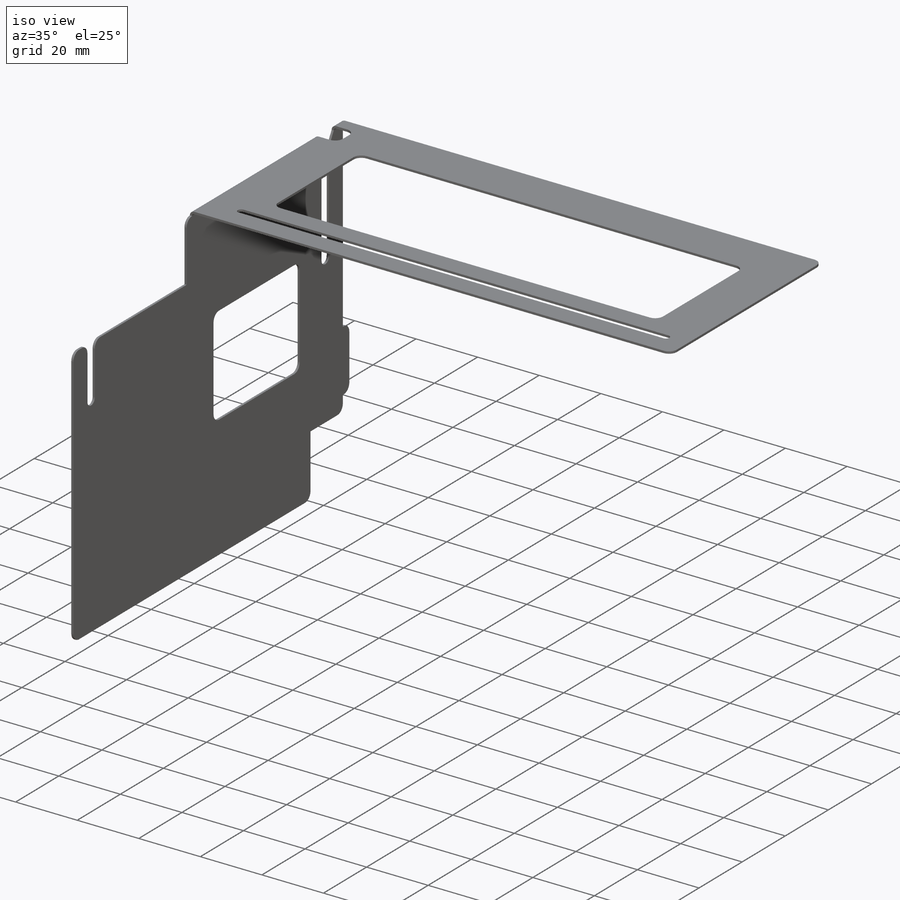
[diagram: iso view]
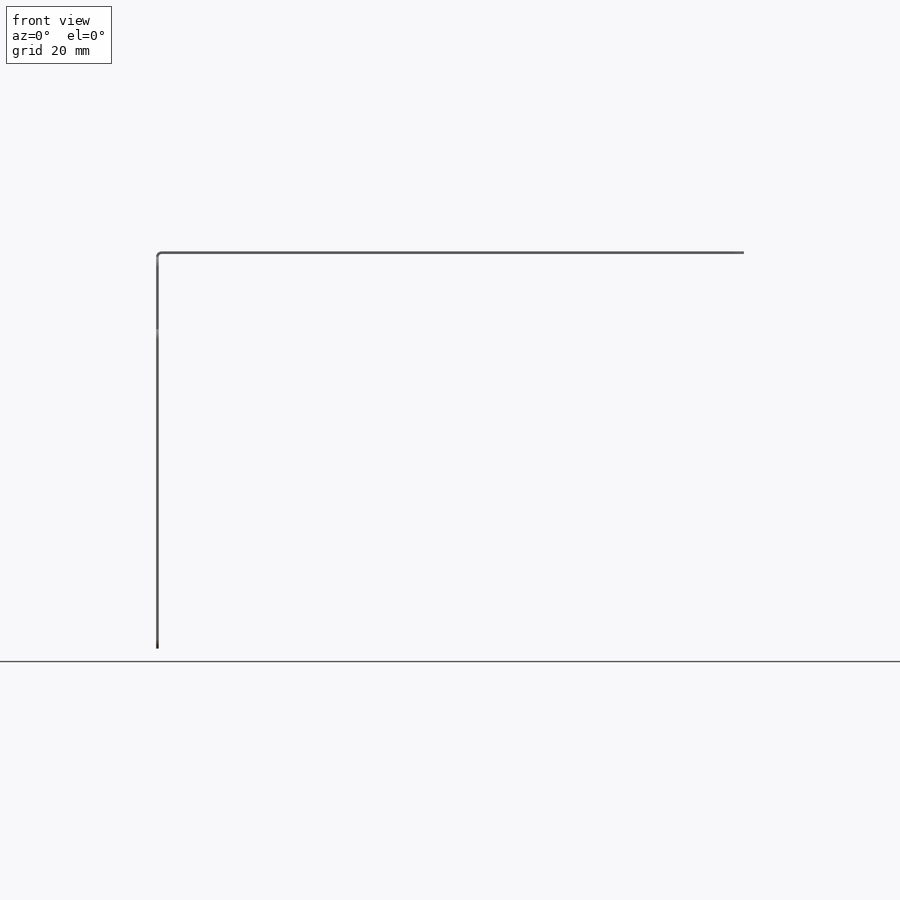
[diagram: front view]
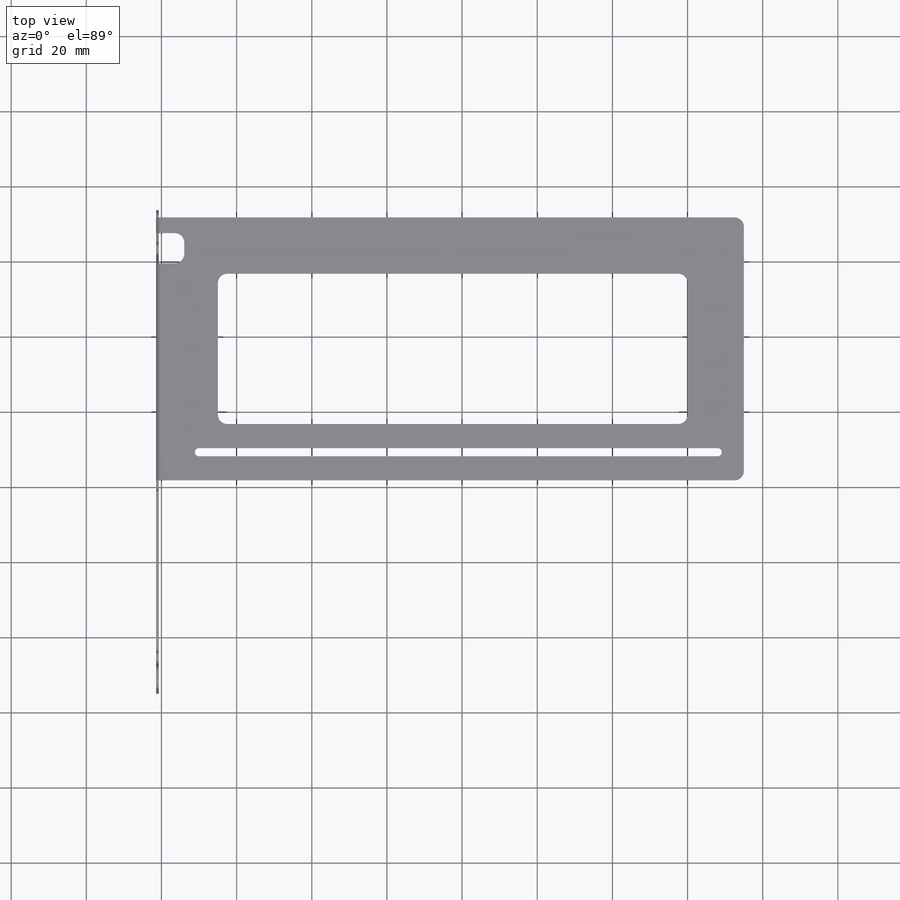
[diagram: top view]
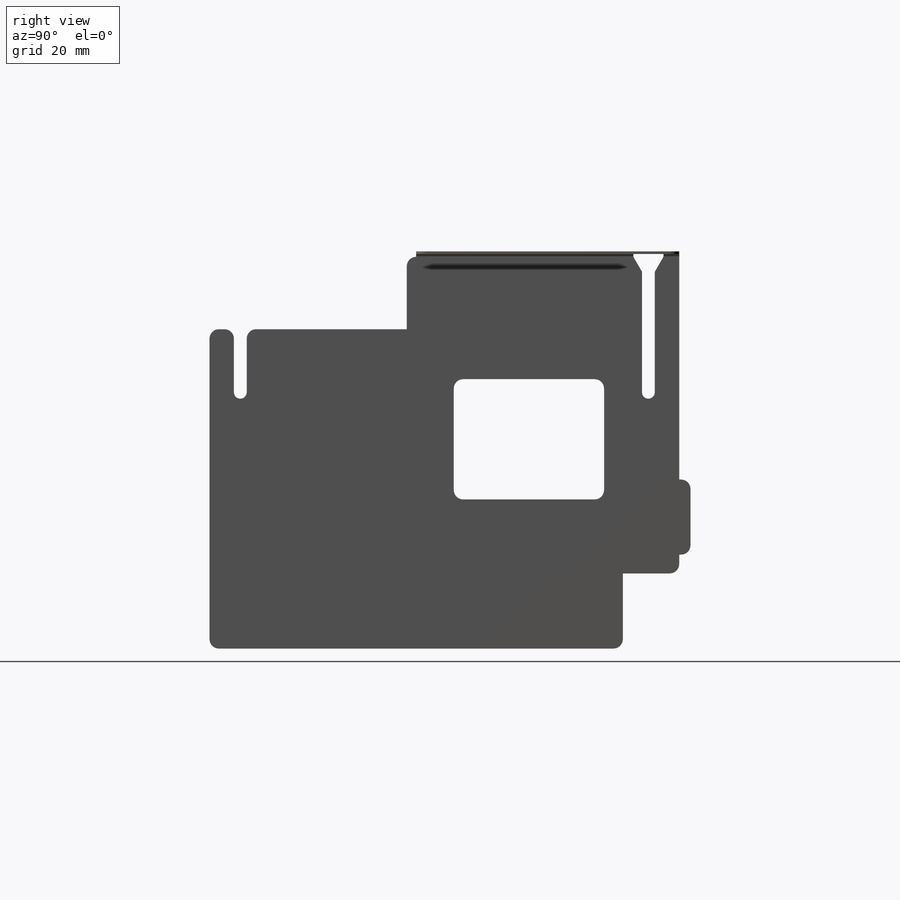
[diagram: right view]
SOLIDWORKS PART (.sldprt)
format: sldprt  version: not decoded by parser v0  size: 428,032 bytes
history: native  units: mm
features: sketch x11, cut_extrude x4, sheet_metal_op x3, extrude x2, material x1, fillet x1 + 1 further entry (+11 scaffold rows collapsed; 1 parser-record rows omitted)
feature tree (35):
  scaffold x11  (default folders/planes/origin — collapsed)
  material  "Material <not specified>"
  sketch  "Sketch1"  dims[D1=15.0mm D2=40.0mm D3=15.0mm D4=155.0mm D5=15.0mm D6=15.0mm]
  sheet_metal_op  "Sheet-Metal1"
  sheet_metal_op  "Base-Flange1"
  sketch  "Sketch22"  dims[c1.D1=1.1mm c1.D2=10.0mm c1.D3=7.0mm c1.D4=7.5mm c2.D2=10.0mm]
  cut_extrude  "Cut-Extrude3"  Depth=10mm
  sketch  "Sketch25"  dims[c1.D1=20.0mm c1.D2=15.0mm c2.D1=0.7366mm c2.D4=90.0deg c2.D5=5.0 c2.D8=0.35mm c2.D9=0.35mm c3.D1=0.7366mm c3.D2=500.0mm c3.D3=0.0mm c3.D6=10.0mm c3.D7=105.0mm]
  sketch  "Sketch26"  dims[D1=85.0mm]
  extrude  "Boss-Extrude1"  Depth=55mm
  sketch  "Sketch27"  dims[D1=20.0mm D2=25.0mm]
  extrude  "Boss-Extrude2"  Depth=3mm
  sketch  "Sketch29"  dims[D1=3.4mm D2=50.0mm]
  cut_extrude  "Cut-Extrude4"  [1 undecoded]
  sketch  "Sketch30"  dims[D1=2.5mm]
  sheet_metal_op  "Tab1"
  sketch  "Sketch31"  dims[D1=8.0mm D2=1.3mm]
  cut_extrude  "Cut-Extrude5"  Depth=7.5mm
  sketch  "Sketch32"  dims[D1=32.0mm D2=40.0mm D3=20.0mm]
  cut_extrude  "Cut-Extrude6"  [1 undecoded]
  fillet  "Fillet1"  Radius=2.5mm
  "Flat-Pattern1"
  sketch  "Bend-Lines1"
  sketch  "Bounding-Box1"
  parser-record x1  (decoder bookkeeping rows leaked as tree rows — omitted from the tree; the rows remain in map.json)
decode coverage: 14 of 21 modeling features carry decoded parameters; 1 rows unclassified (native names shown)
note: 2 parameter values undecoded
note: suppression state not decoded; provenance and decode notes live in map.json
